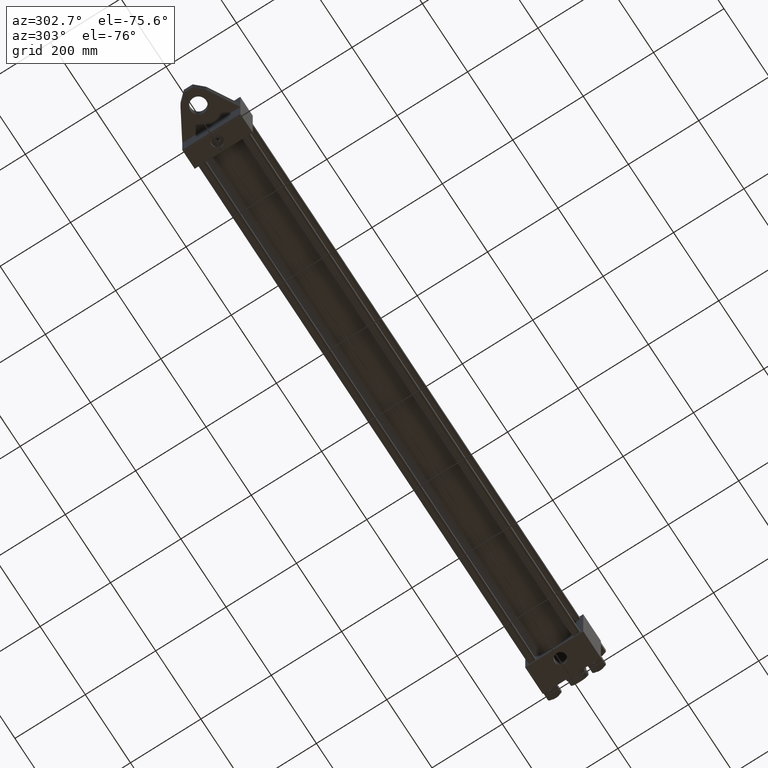
[diagram: clean part render]
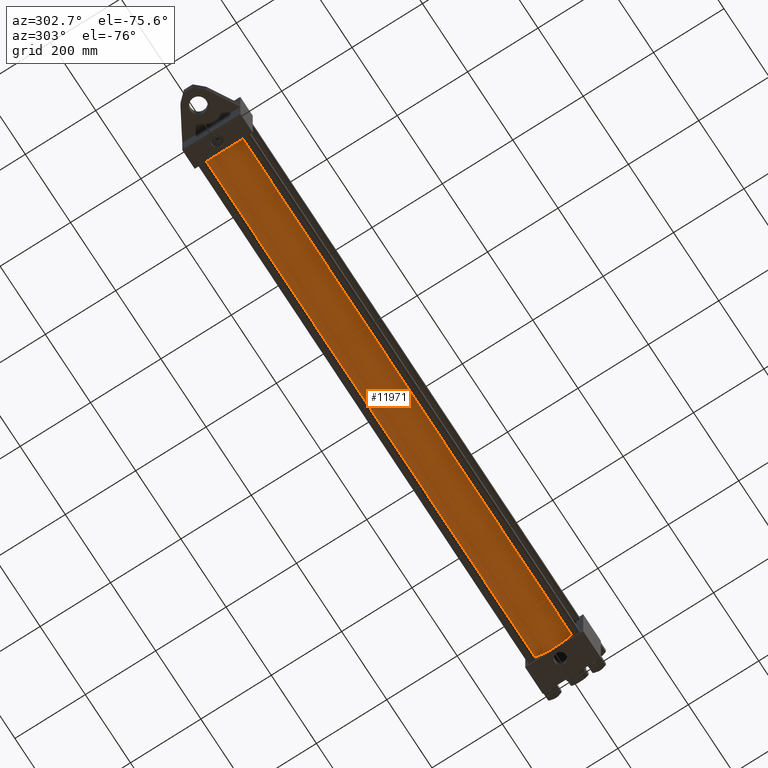
[diagram: same view with one face highlighted and labeled with its STEP entity id]
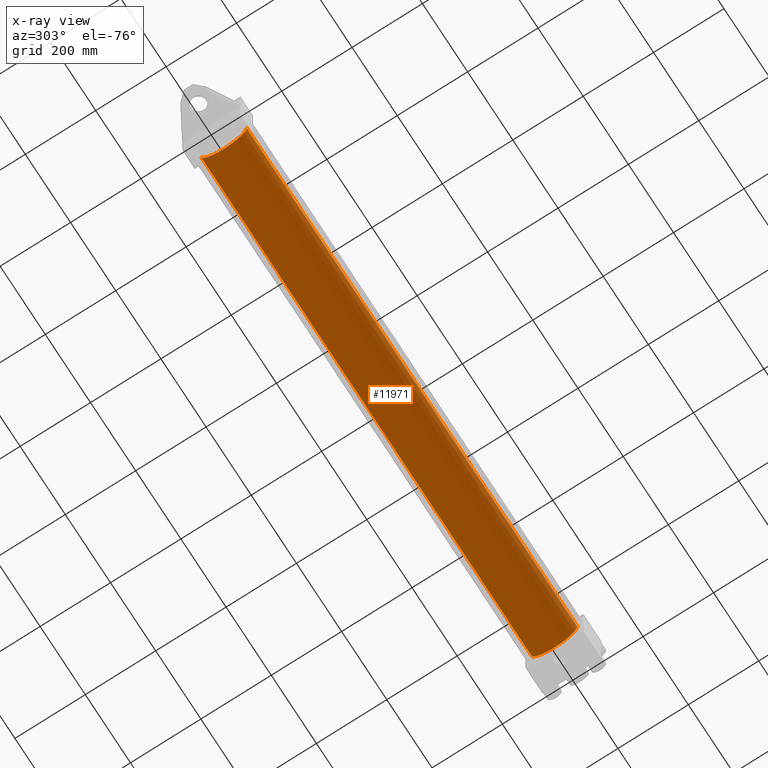
[diagram: x-ray of the same camera — body ghosted, the highlighted face saturated]
A machine part, auxiliary view. The second image highlights one B-rep face of the part: STEP entity #11971.
The next image is the same camera in x-ray: the body ghosted, the highlighted face saturated — about 0% of this face is hidden behind the body in this view.
In plain terms, the highlighted cylindrical surface (edge-blend (fillet) strip) has radius 65.5 mm, axis along (-1, -0, 0).
Its self-contained STEP definition (entity closure, byte-faithful):
#257 = DIRECTION ( 'NONE',  ( -1.000000000000000000, -0.000000000000000000, -0.000000000000000000 ) ) ;
#548 = FACE_OUTER_BOUND ( 'NONE', #19517, .T. ) ;
#1146 = CARTESIAN_POINT ( 'NONE',  ( 1518.000000000000000, -2.602085213965210642E-15, 65.50000000000001421 ) ) ;
#2072 = EDGE_CURVE ( 'NONE', #41739, #37691, #15736, .T. ) ;
#2254 = DIRECTION ( 'NONE',  ( 0.000000000000000000, 0.000000000000000000, -1.000000000000000000 ) ) ;
#3026 = EDGE_CURVE ( 'NONE', #41739, #29627, #27844, .T. ) ;
#3783 = CARTESIAN_POINT ( 'NONE',  ( 1518.000000000000000, 5.419351320449954973E-15, -65.50000000000001421 ) ) ;
#3931 = CARTESIAN_POINT ( 'NONE',  ( 54.99999999999993605, -2.602085213965210642E-15, 65.50000000000001421 ) ) ;
#4200 = DIRECTION ( 'NONE',  ( -1.000000000000000000, -0.000000000000000000, -0.000000000000000000 ) ) ;
#4772 = AXIS2_PLACEMENT_3D ( 'NONE', #22210, #44367, #11622 ) ;
#7400 = ORIENTED_EDGE ( 'NONE', *, *, #34241, .T. ) ;
#9751 = VECTOR ( 'NONE', #4200, 1000.000000000000000 ) ;
#11622 = DIRECTION ( 'NONE',  ( 0.000000000000000000, 0.000000000000000000, 1.000000000000000000 ) ) ;
#11971 = ADVANCED_FACE ( 'NONE', ( #548 ), #33770, .T. ) ;
#15736 = LINE ( 'NONE', #1146, #9751 ) ;
#15948 = CIRCLE ( 'NONE', #30258, 65.50000000000001421 ) ;
#18381 = LINE ( 'NONE', #3783, #43658 ) ;
#18575 = CARTESIAN_POINT ( 'NONE',  ( 54.99999999999993605, 5.419351320449954973E-15, -65.50000000000001421 ) ) ;
#19517 = EDGE_LOOP ( 'NONE', ( #30234, #33241, #28468, #7400 ) ) ;
#21794 = AXIS2_PLACEMENT_3D ( 'NONE', #34530, #34067, #2254 ) ;
#22210 = CARTESIAN_POINT ( 'NONE',  ( 1518.000000000000000, -2.602085213965210642E-15, 0.000000000000000000 ) ) ;
#25883 = DIRECTION ( 'NONE',  ( 1.000000000000000000, -0.000000000000000000, -0.000000000000000000 ) ) ;
#27704 = EDGE_CURVE ( 'NONE', #29627, #41677, #18381, .T. ) ;
#27844 = CIRCLE ( 'NONE', #21794, 65.50000000000001421 ) ;
#28468 = ORIENTED_EDGE ( 'NONE', *, *, #2072, .T. ) ;
#29627 = VERTEX_POINT ( 'NONE', #33421 ) ;
#30234 = ORIENTED_EDGE ( 'NONE', *, *, #27704, .F. ) ;
#30258 = AXIS2_PLACEMENT_3D ( 'NONE', #36735, #25883, #40274 ) ;
#33241 = ORIENTED_EDGE ( 'NONE', *, *, #3026, .F. ) ;
#33421 = CARTESIAN_POINT ( 'NONE',  ( 1518.000000000000000, 5.419351320449954973E-15, -65.50000000000001421 ) ) ;
#33770 = CYLINDRICAL_SURFACE ( 'NONE', #4772, 65.50000000000001421 ) ;
#34067 = DIRECTION ( 'NONE',  ( 1.000000000000000000, 0.000000000000000000, 0.000000000000000000 ) ) ;
#34241 = EDGE_CURVE ( 'NONE', #37691, #41677, #15948, .T. ) ;
#34530 = CARTESIAN_POINT ( 'NONE',  ( 1518.000000000000000, -2.602085213965210642E-15, 0.000000000000000000 ) ) ;
#36735 = CARTESIAN_POINT ( 'NONE',  ( 54.99999999999993605, -2.602085213965210642E-15, 0.000000000000000000 ) ) ;
#37691 = VERTEX_POINT ( 'NONE', #3931 ) ;
#38150 = CARTESIAN_POINT ( 'NONE',  ( 1518.000000000000000, -2.602085213965210642E-15, 65.50000000000001421 ) ) ;
#40274 = DIRECTION ( 'NONE',  ( 0.000000000000000000, 0.000000000000000000, 1.000000000000000000 ) ) ;
#41677 = VERTEX_POINT ( 'NONE', #18575 ) ;
#41739 = VERTEX_POINT ( 'NONE', #38150 ) ;
#43658 = VECTOR ( 'NONE', #257, 1000.000000000000000 ) ;
#44367 = DIRECTION ( 'NONE',  ( -1.000000000000000000, -0.000000000000000000, -0.000000000000000000 ) ) ;